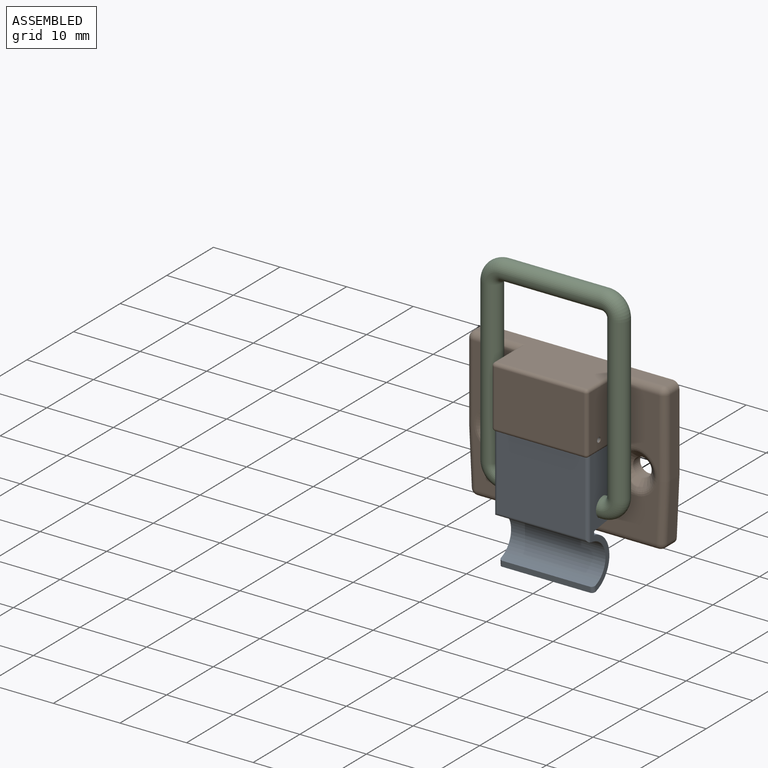
[diagram: assembled view]
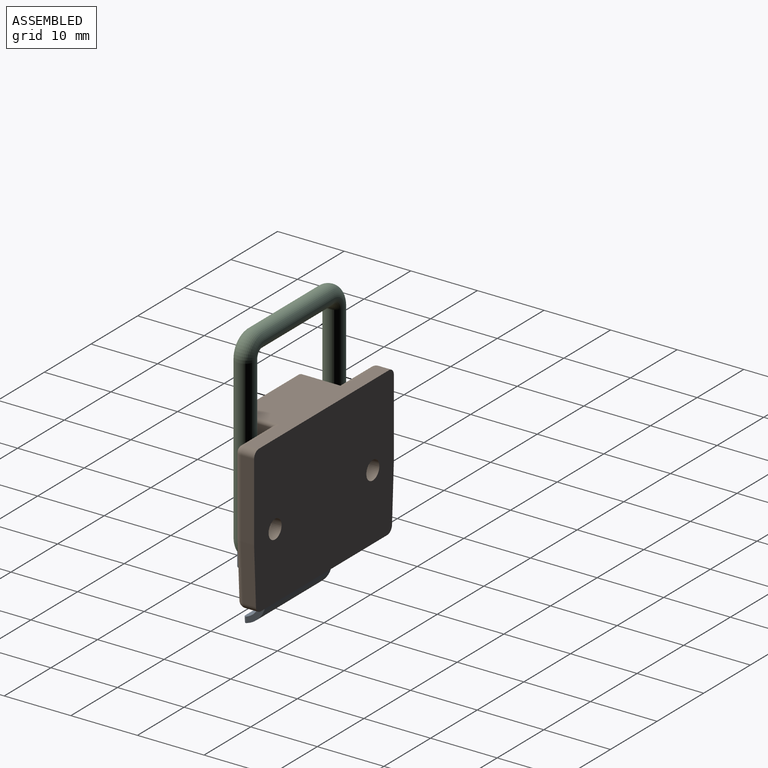
[diagram: assembled view, second angle]
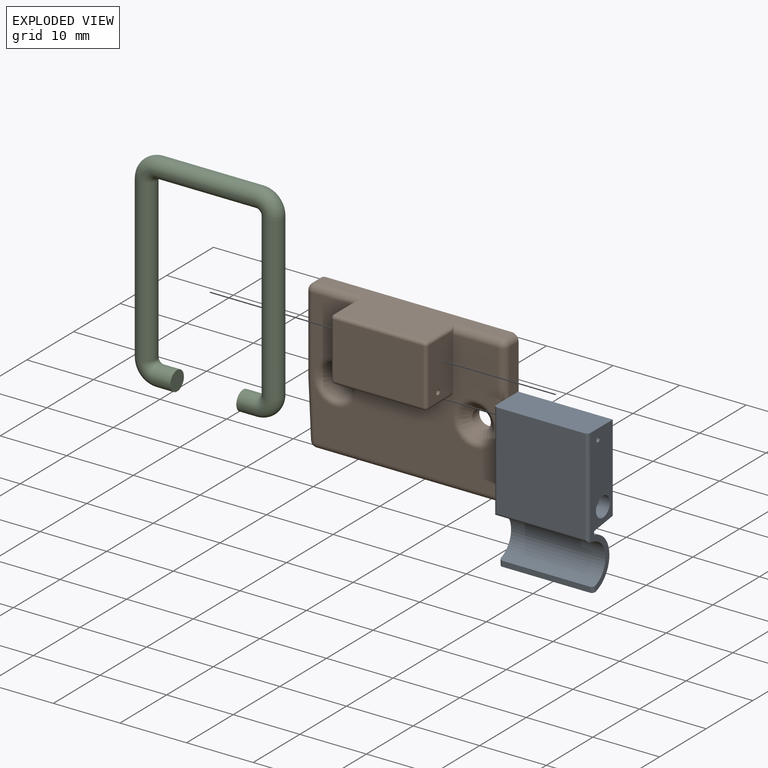
[diagram: exploded view]
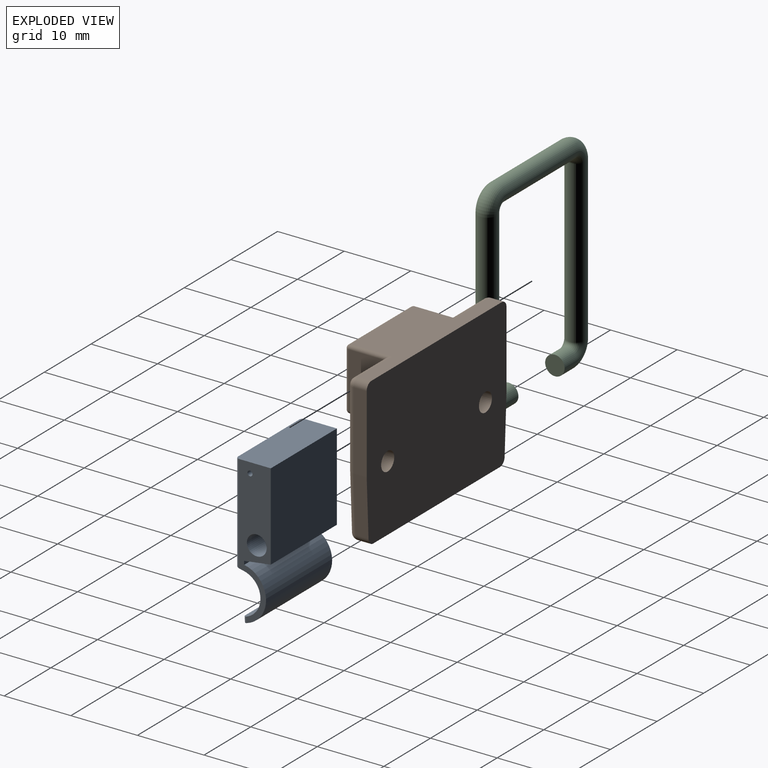
[diagram: exploded view, second angle]
ASSEMBLY  parts=3 mates=2
PART A: 18 faces, bbox 14.2x22.1x5.3 mm
  f0: cylinder r=3.17mm len=14.17mm, axis (-1,0,0), area 123.5mm2, adj f1,f8,f9,f10,f16,f17
  f1: plane 13.16x0.84mm, normal (0,-0.06,1), area 11.1mm2, adj f0,f2,f16,f17
  f2: cylinder r=4.01mm len=14.17mm, axis (-1,0,0), area 159.6mm2, adj f1,f3,f9,f10,f16,f17
  f3: plane 14.17x0.54mm, normal (0,0,-1), area 7.6mm2, adj f2,f4,f9,f10
  f4: plane 14.17x4mm, normal (0,-0.99,-0.14), area 57.2mm2, adj f3,f5,f9,f10
  f5: plane 14.17x13.06mm, normal (0,0,-1), area 185.1mm2, adj f4,f6,f9,f10
  f6: plane 14.17x5.28mm, normal (0,1,0), area 74.8mm2, adj f5,f7,f9,f10,f13,f14
  f7: plane 14.32x13.16mm, normal (0,0,1), area 188.5mm2, adj f6,f13,f14,f15
  f8: plane 14.17x0.84mm, normal (0,-0.98,0.22), area 12.2mm2, adj f0,f9,f10,f13,f14,f15
  f9: plane 21.96x4.78mm, normal (1,0,0), area 65.5mm2, adj f0,f2,f3,f4,f5,f6,f8,f11
  f10: plane 21.96x4.78mm, normal (-1,0,0), area 65.5mm2, adj f0,f2,f3,f4,f5,f6,f8,f11
  f11: cylinder r=1.49mm len=14.17mm, axis (1,0,0), area 132.3mm2, adj f9,f10
  f12: cylinder r=0.38mm len=14.17mm, axis (1,0,0), area 33.9mm2, adj f9,f10
  f13: cylinder r=0.51mm len=14.84mm, axis (0,1,0), area 11.7mm2, adj f6,f7,f8,f9,f15
  f14: cylinder r=0.51mm len=14.84mm, axis (0,-1,0), area 11.7mm2, adj f6,f7,f8,f10,f15
  f15: cylinder r=0.51mm len=14.15mm, axis (-1,0,0), area 9.5mm2, adj f7,f8,f13,f14
  f16: cylinder r=0.51mm len=0.97mm, axis (0,-1,-0.06), area 0.7mm2, adj f0,f1,f2,f10
  f17: cylinder r=0.51mm len=0.97mm, axis (0,1,0.06), area 0.7mm2, adj f0,f1,f2,f9
PART B: 46 faces, bbox 30x8.7x22.2 mm
  f0: plane 27.94x20.19mm, normal (0,-1,0), area 373.2mm2, adj f12,f13,f14,f18,f20,f22,f25,f27
  f1: plane 27.94x8.18mm, normal (0,0,1), area 138.1mm2, adj f7,f17,f18,f28,f31,f36,f42,f45
  f2: plane 11.68x1.96mm, normal (-1,0,0), area 22.9mm2, adj f3,f7,f17,f20
  f3: plane 8.56x1.96mm, normal (-1,0,-0.05), area 16.8mm2, adj f2,f7,f21,f22
  f4: plane 27.14x1.96mm, normal (0,0,-1), area 53.1mm2, adj f7,f21,f24,f25
  f5: plane 8.56x1.96mm, normal (1,0,-0.05), area 16.8mm2, adj f6,f7,f24,f27
  f6: plane 11.68x1.96mm, normal (1,0,0), area 22.9mm2, adj f5,f7,f28,f29
  f7: plane 29.97x22.23mm, normal (0,1,0), area 648.8mm2, adj f1,f2,f3,f4,f5,f6,f8,f10
  f8: cylinder r=1.4mm len=2.79mm, axis (0,-1,0), area 13.3mm2, adj f7,f9
  f9: cone r=1.4mm half-angle=45deg, axis (0,-1,0), area 20.4mm2, adj f8,f32
  f10: cylinder r=1.4mm len=2.79mm, axis (0,-1,0), area 13.3mm2, adj f7,f11
  f11: cone r=1.4mm half-angle=45deg, axis (0,-1,0), area 20.4mm2, adj f10,f33
  f12: plane 8.33x5.34mm, normal (-1,0,0), area 42.9mm2, adj f0,f16,f18,f39,f43,f45
  f13: plane 13.41x5.21mm, normal (0,0,-1), area 69.8mm2, adj f0,f34,f38,f39
  f14: plane 8.33x5.34mm, normal (1,0,0), area 42.9mm2, adj f0,f16,f31,f34,f36,f37
  f15: plane 13.41x8.33mm, normal (0,-1,0), area 111.7mm2, adj f37,f38,f42,f43
  f16: cylinder r=0.38mm len=14.43mm, axis (1,0,0), area 34.5mm2, adj f12,f14
  f17: cylinder r=1.02mm len=1.96mm, axis (0,-1,0), area 3.1mm2, adj f1,f2,f7,f19
  f18: cylinder r=1.02mm len=7.26mm, axis (1,0,0), area 11mm2, adj f0,f1,f12,f19,f45
  f19: sphere r=1.02mm, area 1.6mm2, adj f17,f18,f20
  f20: cylinder r=1.02mm len=11.68mm, axis (0,0,1), area 18.6mm2, adj f0,f2,f19,f22
  f21: cylinder r=1.02mm len=1.96mm, axis (0,1,0), area 3mm2, adj f3,f4,f7,f23
  f22: cylinder r=1.02mm len=8.6mm, axis (-0.05,0,1), area 13.7mm2, adj f0,f3,f20,f23
  f23: sphere r=1.02mm, area 1.6mm2, adj f21,f22,f25
  f24: cylinder r=1.02mm len=1.96mm, axis (0,1,0), area 3mm2, adj f4,f5,f7,f26
  f25: cylinder r=1.02mm len=27.14mm, axis (-1,0,0), area 43.3mm2, adj f0,f4,f23,f26
  f26: sphere r=1.02mm, area 1.6mm2, adj f24,f25,f27
  f27: cylinder r=1.02mm len=8.6mm, axis (-0.05,0,-1), area 13.7mm2, adj f0,f5,f26,f29
  f28: cylinder r=1.02mm len=1.96mm, axis (0,1,0), area 3.1mm2, adj f1,f6,f7,f30
  f29: cylinder r=1.02mm len=11.68mm, axis (0,0,-1), area 18.6mm2, adj f0,f6,f27,f30
  f30: sphere r=1.02mm, area 1.6mm2, adj f28,f29,f31
  f31: cylinder r=1.02mm len=7.26mm, axis (1,0,0), area 11mm2, adj f0,f1,f14,f30,f36
  f32: torus R=3.28mm, axis (0,-1,0), area 14.5mm2, adj f0,f9
  f33: torus R=3.28mm, axis (0,-1,0), area 14.5mm2, adj f0,f11
  f34: cylinder r=0.51mm len=5.21mm, axis (0,-1,0), area 4.2mm2, adj f0,f13,f14,f35
  f35: sphere r=0.51mm, area 0.4mm2, adj f34,f37,f38
  f36: cylinder r=0.51mm len=6.22mm, axis (0,1,0), area 4.6mm2, adj f1,f14,f31,f40
  f37: cylinder r=0.51mm len=8.33mm, axis (0,0,-1), area 6.6mm2, adj f14,f15,f35,f40
  f38: cylinder r=0.51mm len=13.41mm, axis (-1,0,0), area 10.7mm2, adj f13,f15,f35,f41
  f39: cylinder r=0.51mm len=5.21mm, axis (0,1,0), area 4.2mm2, adj f0,f12,f13,f41
  f40: sphere r=0.51mm, area 0.4mm2, adj f36,f37,f42
  f41: sphere r=0.51mm, area 0.4mm2, adj f38,f39,f43
  f42: cylinder r=0.51mm len=13.41mm, axis (1,0,0), area 10.7mm2, adj f1,f15,f40,f44
  f43: cylinder r=0.51mm len=8.33mm, axis (0,0,1), area 6.6mm2, adj f12,f15,f41,f44
  f44: sphere r=0.51mm, area 0.4mm2, adj f42,f43,f45
  f45: cylinder r=0.51mm len=6.22mm, axis (0,-1,0), area 4.6mm2, adj f1,f12,f18,f44
PART C: 11 faces, bbox 22.5x2.9x31.8 mm
  f0: plane 2.92x2.92mm, normal (-1,0,0), area 6.7mm2, adj f2
  f1: plane 2.92x2.92mm, normal (1,0,0), area 6.7mm2, adj f10
  f2: cylinder r=1.46mm len=2.92mm, axis (1,0,0), area 23.3mm2, adj f0,f3
  f3: torus R=2.03mm, axis (0,-1,0), area 29.3mm2, adj f2,f4
  f4: cylinder r=1.46mm len=24.23mm, axis (0,0,1), area 222.4mm2, adj f3,f5
  f5: torus R=2.03mm, axis (0,-1,0), area 29.3mm2, adj f4,f6
  f6: cylinder r=1.46mm len=14.99mm, axis (-1,0,0), area 137.5mm2, adj f5,f7
  f7: torus R=2.03mm, axis (0,-1,0), area 29.3mm2, adj f6,f8
  f8: cylinder r=1.46mm len=24.23mm, axis (0,0,-1), area 222.4mm2, adj f7,f9
  f9: torus R=2.03mm, axis (0,-1,0), area 29.3mm2, adj f8,f10
  f10: cylinder r=1.46mm len=2.92mm, axis (1,0,0), area 23.3mm2, adj f1,f9
PLACE A rot(axis=(1,0,0),90deg) t=(0,-14.27,18.6)mm
PLACE B at identity fixed
PLACE C t=(-20.48,-5.13,-20.39)mm
MATE revolute B.f16 <-> A.f12  axis (1,0,0) through (7.21,-6.15,-7.62)mm
MATE revolute A.f11 <-> C.f2  axis (1,0,0) through (7.09,-5.13,-17.12)mm
